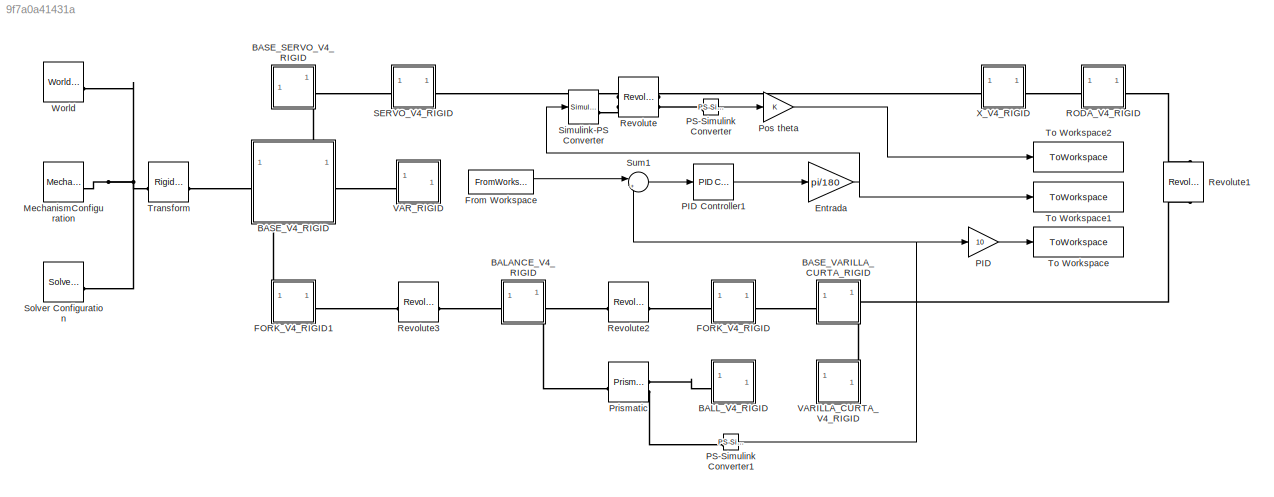
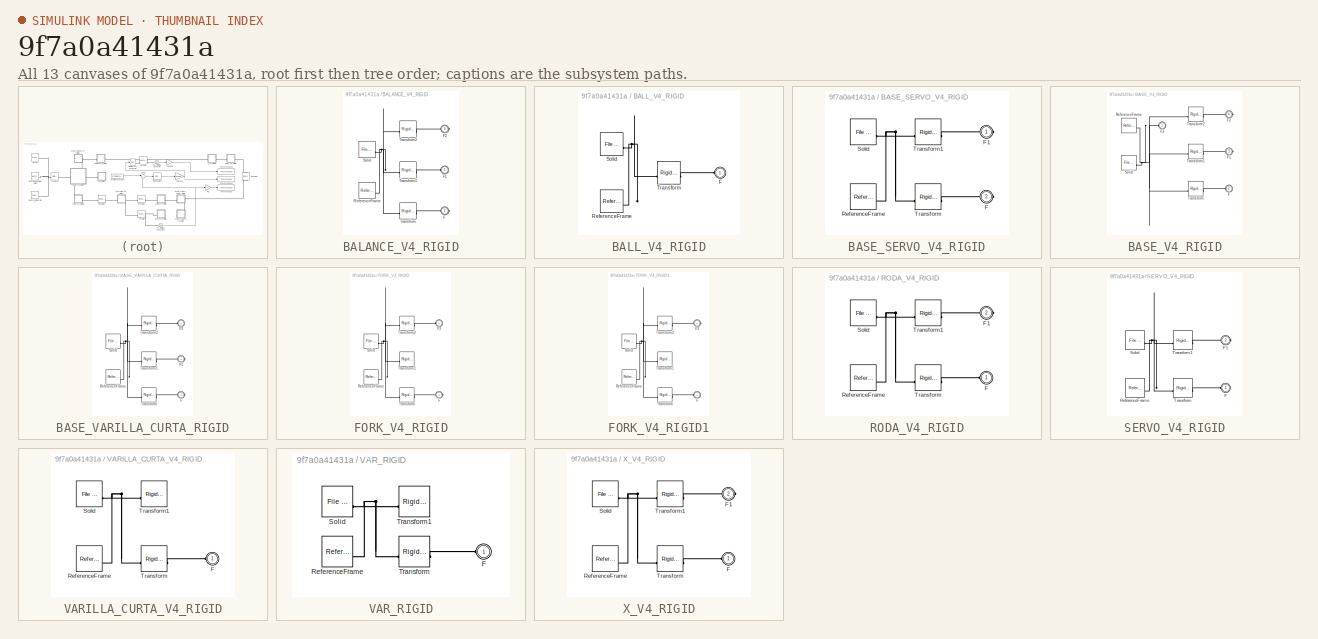
[diagram: thumbnail index - all 13 canvases of the model, root first then tree order]
MODEL slx_9f7a0a41431a
KIND model
CONFIG AbsTol = auto
CONFIG EnableMultiTasking = off
CONFIG FixedStep = auto
CONFIG MaxStep = auto
CONFIG MinStep = auto
CONFIG RelTol = 1e-2
CONFIG SampleTimeConstraint = Unconstrained
CONFIG SolverName = ode15s
CONFIG StartTime = 0.0
CONFIG StopTime = 20
WORKSPACE source: external: MATLAB File  (data not in archive)
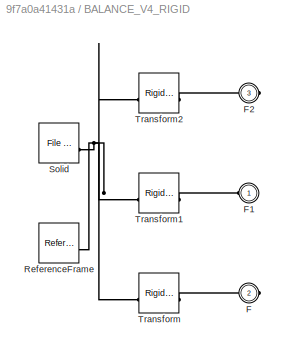
BLOCK [SubSystem] BALANCE_V4_RIGID
  PortSchema = {"entries":[{"content":{"sides":[{"content":{"connectorIds":["LConn1"]},"type":"ConnectorPlacement.EquallySpacedRectSide","uuid":"0e1499bb-e7f1-4744-8e19-5e4cae89a6b9"},{"content":{"connectorIds":["RConn1"],"side":"RIGHT"},"type":"ConnectorPlacement.EquallySpacedRectSide","uuid":"52f7592b-0b54-4fed-a927-b52b2f8c951d"},{"content":{"side":"TOP"},"type":"ConnectorPlacement.EquallySpacedRectSide","uui...<+379ch>
BLOCK [PMIOPort] BALANCE_V4_RIGID/F
  Port = 2
  Side = Right
BLOCK [PMIOPort] BALANCE_V4_RIGID/F1
  Side = Left
BLOCK [PMIOPort] BALANCE_V4_RIGID/F2
  Port = 3
  Side = Right
BLOCK [Reference] BALANCE_V4_RIGID/ReferenceFrame  REF=sm_lib/Frames and
Transforms/Reference
Frame
  SourceBlock = sm_lib/Frames and\nTransforms/Reference\nFrame
  SourceType = Reference\nFrame
BLOCK [Reference] BALANCE_V4_RIGID/Solid  REF=sm_lib/Body Elements/File Solid
  SourceBlock = sm_lib/Body Elements/File Solid
  SourceType = File Solid
BLOCK [Reference] BALANCE_V4_RIGID/Transform  REF=sm_lib/Frames and
Transforms/Rigid
Transform
  SourceBlock = sm_lib/Frames and\nTransforms/Rigid\nTransform
  SourceType = Rigid\nTransform
BLOCK [Reference] BALANCE_V4_RIGID/Transform1  REF=sm_lib/Frames and
Transforms/Rigid
Transform
  SourceBlock = sm_lib/Frames and\nTransforms/Rigid\nTransform
  SourceType = Rigid\nTransform
BLOCK [Reference] BALANCE_V4_RIGID/Transform2  REF=sm_lib/Frames and
Transforms/Rigid
Transform
  SourceBlock = sm_lib/Frames and\nTransforms/Rigid\nTransform
  SourceType = Rigid\nTransform
BLOCK [SubSystem] BALL_V4_RIGID
  NameLocation = top
BLOCK [PMIOPort] BALL_V4_RIGID/F
  Side = Left
BLOCK [Reference] BALL_V4_RIGID/ReferenceFrame  REF=sm_lib/Frames and
Transforms/Reference
Frame
  SourceBlock = sm_lib/Frames and\nTransforms/Reference\nFrame
  SourceType = Reference\nFrame
BLOCK [Reference] BALL_V4_RIGID/Solid  REF=sm_lib/Body Elements/File Solid
  SourceBlock = sm_lib/Body Elements/File Solid
  SourceType = File Solid
BLOCK [Reference] BALL_V4_RIGID/Transform  REF=sm_lib/Frames and
Transforms/Rigid
Transform
  SourceBlock = sm_lib/Frames and\nTransforms/Rigid\nTransform
  SourceType = Rigid\nTransform
BLOCK [SubSystem] BASE_SERVO_V4_RIGID
  NameLocation = top
  PortSchema = {"entries":[{"content":{"sides":[{"content":{},"type":"ConnectorPlacement.EquallySpacedRectSide","uuid":"ff068e32-094c-455c-a0b0-80a3afee4610"},{"content":{"connectorIds":["RConn1"],"side":"RIGHT"},"type":"ConnectorPlacement.EquallySpacedRectSide","uuid":"6b238b63-398a-4d63-a4b0-2fe1ec0d14c1"},{"content":{"side":"TOP"},"type":"ConnectorPlacement.EquallySpacedRectSide","uuid":"70bf06c6-ef26-4b0b-92...<+354ch>
BLOCK [PMIOPort] BASE_SERVO_V4_RIGID/F
  Port = 2
  Side = Right
BLOCK [PMIOPort] BASE_SERVO_V4_RIGID/F1
  Side = Right
BLOCK [Reference] BASE_SERVO_V4_RIGID/ReferenceFrame  REF=sm_lib/Frames and
Transforms/Reference
Frame
  SourceBlock = sm_lib/Frames and\nTransforms/Reference\nFrame
  SourceType = Reference\nFrame
BLOCK [Reference] BASE_SERVO_V4_RIGID/Solid  REF=sm_lib/Body Elements/File Solid
  SourceBlock = sm_lib/Body Elements/File Solid
  SourceType = File Solid
BLOCK [Reference] BASE_SERVO_V4_RIGID/Transform  REF=sm_lib/Frames and
Transforms/Rigid
Transform
  SourceBlock = sm_lib/Frames and\nTransforms/Rigid\nTransform
  SourceType = Rigid\nTransform
BLOCK [Reference] BASE_SERVO_V4_RIGID/Transform1  REF=sm_lib/Frames and
Transforms/Rigid
Transform
  SourceBlock = sm_lib/Frames and\nTransforms/Rigid\nTransform
  SourceType = Rigid\nTransform
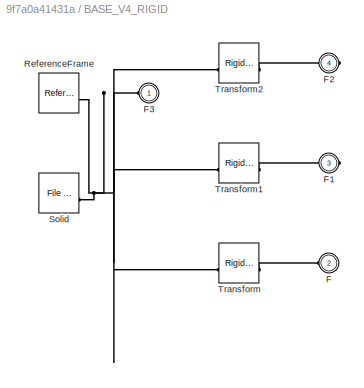
BLOCK [SubSystem] BASE_V4_RIGID
  PortSchema = {"entries":[{"content":{"sides":[{"content":{"connectorIds":["LConn1"]},"type":"ConnectorPlacement.EquallySpacedRectSide","uuid":"37133109-e8ec-41aa-b373-ba126b830fde"},{"content":{"connectorIds":["RConn1"],"side":"RIGHT"},"type":"ConnectorPlacement.EquallySpacedRectSide","uuid":"dc72eae3-6f65-4d7f-a0ec-de73502dd286"},{"content":{"connectorIds":["LConn2"],"side":"TOP"},"type":"ConnectorPlacement.E...<+405ch>
BLOCK [PMIOPort] BASE_V4_RIGID/F
  Port = 2
  Side = Left
BLOCK [PMIOPort] BASE_V4_RIGID/F1
  Port = 3
  Side = Right
BLOCK [PMIOPort] BASE_V4_RIGID/F2
  Port = 4
  Side = Right
BLOCK [PMIOPort] BASE_V4_RIGID/F3
  Side = Left
BLOCK [Reference] BASE_V4_RIGID/ReferenceFrame  REF=sm_lib/Frames and
Transforms/Reference
Frame
  SourceBlock = sm_lib/Frames and\nTransforms/Reference\nFrame
  SourceType = Reference\nFrame
BLOCK [Reference] BASE_V4_RIGID/Solid  REF=sm_lib/Body Elements/File Solid
  SourceBlock = sm_lib/Body Elements/File Solid
  SourceType = File Solid
BLOCK [Reference] BASE_V4_RIGID/Transform  REF=sm_lib/Frames and
Transforms/Rigid
Transform
  SourceBlock = sm_lib/Frames and\nTransforms/Rigid\nTransform
  SourceType = Rigid\nTransform
BLOCK [Reference] BASE_V4_RIGID/Transform1  REF=sm_lib/Frames and
Transforms/Rigid
Transform
  SourceBlock = sm_lib/Frames and\nTransforms/Rigid\nTransform
  SourceType = Rigid\nTransform
BLOCK [Reference] BASE_V4_RIGID/Transform2  REF=sm_lib/Frames and
Transforms/Rigid
Transform
  SourceBlock = sm_lib/Frames and\nTransforms/Rigid\nTransform
  SourceType = Rigid\nTransform
BLOCK [SubSystem] BASE_VARILLA_CURTA_RIGID
  NameLocation = top
  PortSchema = {"entries":[{"content":{"sides":[{"content":{"connectorIds":["LConn1"]},"type":"ConnectorPlacement.EquallySpacedRectSide","uuid":"ea175ced-bf57-4b08-b428-bb467534bc0c"},{"content":{"connectorIds":["RConn1"],"side":"RIGHT"},"type":"ConnectorPlacement.EquallySpacedRectSide","uuid":"64fd755e-15bd-4e92-a960-9ba0b0f524da"},{"content":{"side":"TOP"},"type":"ConnectorPlacement.EquallySpacedRectSide","uui...<+379ch>
BLOCK [PMIOPort] BASE_VARILLA_CURTA_RIGID/F
  Port = 2
  Side = Right
BLOCK [PMIOPort] BASE_VARILLA_CURTA_RIGID/F1
  Port = 3
  Side = Right
BLOCK [PMIOPort] BASE_VARILLA_CURTA_RIGID/F2
  Side = Left
BLOCK [Reference] BASE_VARILLA_CURTA_RIGID/ReferenceFrame  REF=sm_lib/Frames and
Transforms/Reference
Frame
  SourceBlock = sm_lib/Frames and\nTransforms/Reference\nFrame
  SourceType = Reference\nFrame
BLOCK [Reference] BASE_VARILLA_CURTA_RIGID/Solid  REF=sm_lib/Body Elements/File Solid
  SourceBlock = sm_lib/Body Elements/File Solid
  SourceType = File Solid
BLOCK [Reference] BASE_VARILLA_CURTA_RIGID/Transform  REF=sm_lib/Frames and
Transforms/Rigid
Transform
  SourceBlock = sm_lib/Frames and\nTransforms/Rigid\nTransform
  SourceType = Rigid\nTransform
BLOCK [Reference] BASE_VARILLA_CURTA_RIGID/Transform1  REF=sm_lib/Frames and
Transforms/Rigid
Transform
  SourceBlock = sm_lib/Frames and\nTransforms/Rigid\nTransform
  SourceType = Rigid\nTransform
BLOCK [Reference] BASE_VARILLA_CURTA_RIGID/Transform2  REF=sm_lib/Frames and
Transforms/Rigid
Transform
  SourceBlock = sm_lib/Frames and\nTransforms/Rigid\nTransform
  SourceType = Rigid\nTransform
BLOCK [Gain] Entrada
  Gain = pi/180
BLOCK [SubSystem] FORK_V4_RIGID
BLOCK [PMIOPort] FORK_V4_RIGID/F
  Port = 2
  Side = Right
BLOCK [PMIOPort] FORK_V4_RIGID/F2
  Side = Left
BLOCK [Reference] FORK_V4_RIGID/ReferenceFrame  REF=sm_lib/Frames and
Transforms/Reference
Frame
  SourceBlock = sm_lib/Frames and\nTransforms/Reference\nFrame
  SourceType = Reference\nFrame
BLOCK [Reference] FORK_V4_RIGID/Solid  REF=sm_lib/Body Elements/File Solid
  SourceBlock = sm_lib/Body Elements/File Solid
  SourceType = File Solid
BLOCK [Reference] FORK_V4_RIGID/Transform  REF=sm_lib/Frames and
Transforms/Rigid
Transform
  SourceBlock = sm_lib/Frames and\nTransforms/Rigid\nTransform
  SourceType = Rigid\nTransform
BLOCK [Reference] FORK_V4_RIGID/Transform1  REF=sm_lib/Frames and
Transforms/Rigid
Transform
  SourceBlock = sm_lib/Frames and\nTransforms/Rigid\nTransform
  SourceType = Rigid\nTransform
BLOCK [Reference] FORK_V4_RIGID/Transform2  REF=sm_lib/Frames and
Transforms/Rigid
Transform
  SourceBlock = sm_lib/Frames and\nTransforms/Rigid\nTransform
  SourceType = Rigid\nTransform
BLOCK [SubSystem] FORK_V4_RIGID1
  PortSchema = {"entries":[{"content":{"sides":[{"content":{},"type":"ConnectorPlacement.EquallySpacedRectSide","uuid":"32a87da9-8b27-400e-a4fe-7b27a9db9256"},{"content":{"connectorIds":["RConn1"],"side":"RIGHT"},"type":"ConnectorPlacement.EquallySpacedRectSide","uuid":"120c0ca0-b690-497a-aed5-44ae480c1385"},{"content":{"connectorIds":["LConn1"],"side":"TOP"},"type":"ConnectorPlacement.EquallySpacedRectSide","uu...<+228ch>
BLOCK [PMIOPort] FORK_V4_RIGID1/F
  Side = Left
BLOCK [PMIOPort] FORK_V4_RIGID1/F2
  Port = 2
  Side = Right
BLOCK [Reference] FORK_V4_RIGID1/ReferenceFrame  REF=sm_lib/Frames and
Transforms/Reference
Frame
  SourceBlock = sm_lib/Frames and\nTransforms/Reference\nFrame
  SourceType = Reference\nFrame
BLOCK [Reference] FORK_V4_RIGID1/Solid  REF=sm_lib/Body Elements/File Solid
  SourceBlock = sm_lib/Body Elements/File Solid
  SourceType = File Solid
BLOCK [Reference] FORK_V4_RIGID1/Transform  REF=sm_lib/Frames and
Transforms/Rigid
Transform
  SourceBlock = sm_lib/Frames and\nTransforms/Rigid\nTransform
  SourceType = Rigid\nTransform
BLOCK [Reference] FORK_V4_RIGID1/Transform1  REF=sm_lib/Frames and
Transforms/Rigid
Transform
  SourceBlock = sm_lib/Frames and\nTransforms/Rigid\nTransform
  SourceType = Rigid\nTransform
BLOCK [Reference] FORK_V4_RIGID1/Transform2  REF=sm_lib/Frames and
Transforms/Rigid
Transform
  SourceBlock = sm_lib/Frames and\nTransforms/Rigid\nTransform
  SourceType = Rigid\nTransform
BLOCK [FromWorkspace] From Workspace
  VariableName = ref_pos
BLOCK [Reference] MechanismConfiguration  REF=sm_lib/Utilities/Mechanism
Configuration
  SourceBlock = sm_lib/Utilities/Mechanism\nConfiguration
  SourceType = Mechanism\nConfiguration
BLOCK [Gain] PID
  Gain = 10
BLOCK [Reference] PID Controller1  REF=slpidlib/PID Controller
  LibrarySourceBlock = simulink/Continuous/PID Controller
  SourceBlock = slpidlib/PID Controller
  SourceType = PID 1dof
BLOCK [Reference] PS-Simulink Converter  REF=nesl_utility/PS-Simulink
Converter
  SourceBlock = nesl_utility/PS-Simulink\nConverter
  SourceType = PS-Simulink\nConverter
BLOCK [Reference] PS-Simulink Converter1  REF=nesl_utility/PS-Simulink
Converter
  SourceBlock = nesl_utility/PS-Simulink\nConverter
  SourceType = PS-Simulink\nConverter
BLOCK [Gain] Pos theta
BLOCK [Reference] Prismatic  REF=sm_lib/Joints/Prismatic
Joint
  SourceBlock = sm_lib/Joints/Prismatic\nJoint
  SourceType = Prismatic\nJoint
BLOCK [SubSystem] RODA_V4_RIGID
BLOCK [PMIOPort] RODA_V4_RIGID/F
  Side = Left
BLOCK [PMIOPort] RODA_V4_RIGID/F1
  Port = 2
  Side = Right
BLOCK [Reference] RODA_V4_RIGID/ReferenceFrame  REF=sm_lib/Frames and
Transforms/Reference
Frame
  SourceBlock = sm_lib/Frames and\nTransforms/Reference\nFrame
  SourceType = Reference\nFrame
BLOCK [Reference] RODA_V4_RIGID/Solid  REF=sm_lib/Body Elements/File Solid
  SourceBlock = sm_lib/Body Elements/File Solid
  SourceType = File Solid
BLOCK [Reference] RODA_V4_RIGID/Transform  REF=sm_lib/Frames and
Transforms/Rigid
Transform
  SourceBlock = sm_lib/Frames and\nTransforms/Rigid\nTransform
  SourceType = Rigid\nTransform
BLOCK [Reference] RODA_V4_RIGID/Transform1  REF=sm_lib/Frames and
Transforms/Rigid
Transform
  SourceBlock = sm_lib/Frames and\nTransforms/Rigid\nTransform
  SourceType = Rigid\nTransform
BLOCK [Reference] Revolute  REF=sm_lib/Joints/Revolute Joint
  SourceBlock = sm_lib/Joints/Revolute Joint
  SourceType = Revolute Joint
BLOCK [Reference] Revolute1  REF=sm_lib/Joints/Revolute Joint
  NameLocation = right
  SourceBlock = sm_lib/Joints/Revolute Joint
  SourceType = Revolute Joint
BLOCK [Reference] Revolute2  REF=sm_lib/Joints/Revolute Joint
  NameLocation = top
  SourceBlock = sm_lib/Joints/Revolute Joint
  SourceType = Revolute Joint
BLOCK [Reference] Revolute3  REF=sm_lib/Joints/Revolute Joint
  SourceBlock = sm_lib/Joints/Revolute Joint
  SourceType = Revolute Joint
BLOCK [SubSystem] SERVO_V4_RIGID
BLOCK [PMIOPort] SERVO_V4_RIGID/F
  Side = Left
BLOCK [PMIOPort] SERVO_V4_RIGID/F1
  Port = 2
  Side = Right
BLOCK [Reference] SERVO_V4_RIGID/ReferenceFrame  REF=sm_lib/Frames and
Transforms/Reference
Frame
  SourceBlock = sm_lib/Frames and\nTransforms/Reference\nFrame
  SourceType = Reference\nFrame
BLOCK [Reference] SERVO_V4_RIGID/Solid  REF=sm_lib/Body Elements/File Solid
  SourceBlock = sm_lib/Body Elements/File Solid
  SourceType = File Solid
BLOCK [Reference] SERVO_V4_RIGID/Transform  REF=sm_lib/Frames and
Transforms/Rigid
Transform
  SourceBlock = sm_lib/Frames and\nTransforms/Rigid\nTransform
  SourceType = Rigid\nTransform
BLOCK [Reference] SERVO_V4_RIGID/Transform1  REF=sm_lib/Frames and
Transforms/Rigid
Transform
  SourceBlock = sm_lib/Frames and\nTransforms/Rigid\nTransform
  SourceType = Rigid\nTransform
BLOCK [Reference] Simulink-PS Converter  REF=nesl_utility/Simulink-PS
Converter
  SourceBlock = nesl_utility/Simulink-PS\nConverter
  SourceType = Simulink-PS\nConverter
BLOCK [Reference] Solver Configuration  REF=nesl_utility/Solver
Configuration
  SourceBlock = nesl_utility/Solver\nConfiguration
  SourceType = Solver\nConfiguration
BLOCK [Sum] Sum1
  Inputs = |+-
BLOCK [ToWorkspace] To Workspace
  FixptAsFi = on
  MaxDataPoints = inf
  SampleTime = -1
  SaveFormat = Structure With Time
  VariableName = PosicionPelota
BLOCK [ToWorkspace] To Workspace1
  FixptAsFi = on
  MaxDataPoints = inf
  SampleTime = -1
  SaveFormat = Structure With Time
  VariableName = Entrada
BLOCK [ToWorkspace] To Workspace2
  FixptAsFi = on
  MaxDataPoints = inf
  SampleTime = -1
  SaveFormat = Structure With Time
  VariableName = angulo_servo
BLOCK [Reference] Transform  REF=sm_lib/Frames and
Transforms/Rigid
Transform
  SourceBlock = sm_lib/Frames and\nTransforms/Rigid\nTransform
  SourceType = Rigid\nTransform
BLOCK [SubSystem] VARILLA_CURTA_V4_RIGID
  PortSchema = {"entries":[{"content":{"sides":[{"content":{},"type":"ConnectorPlacement.EquallySpacedRectSide","uuid":"418f9a1d-013d-4a83-815c-35df5b4f608b"},{"content":{"side":"RIGHT"},"type":"ConnectorPlacement.EquallySpacedRectSide","uuid":"8b052d73-9457-440f-be3f-ef9a254b0474"},{"content":{"connectorIds":["LConn1"],"side":"TOP"},"type":"ConnectorPlacement.EquallySpacedRectSide","uuid":"e815de60-f745-4962-b6...<+202ch>
BLOCK [PMIOPort] VARILLA_CURTA_V4_RIGID/F
  Side = Left
BLOCK [Reference] VARILLA_CURTA_V4_RIGID/ReferenceFrame  REF=sm_lib/Frames and
Transforms/Reference
Frame
  SourceBlock = sm_lib/Frames and\nTransforms/Reference\nFrame
  SourceType = Reference\nFrame
BLOCK [Reference] VARILLA_CURTA_V4_RIGID/Solid  REF=sm_lib/Body Elements/File Solid
  SourceBlock = sm_lib/Body Elements/File Solid
  SourceType = File Solid
BLOCK [Reference] VARILLA_CURTA_V4_RIGID/Transform  REF=sm_lib/Frames and
Transforms/Rigid
Transform
  SourceBlock = sm_lib/Frames and\nTransforms/Rigid\nTransform
  SourceType = Rigid\nTransform
BLOCK [Reference] VARILLA_CURTA_V4_RIGID/Transform1  REF=sm_lib/Frames and
Transforms/Rigid
Transform
  SourceBlock = sm_lib/Frames and\nTransforms/Rigid\nTransform
  SourceType = Rigid\nTransform
BLOCK [SubSystem] VAR_RIGID
  NameLocation = top
BLOCK [PMIOPort] VAR_RIGID/F
  Side = Left
BLOCK [Reference] VAR_RIGID/ReferenceFrame  REF=sm_lib/Frames and
Transforms/Reference
Frame
  SourceBlock = sm_lib/Frames and\nTransforms/Reference\nFrame
  SourceType = Reference\nFrame
BLOCK [Reference] VAR_RIGID/Solid  REF=sm_lib/Body Elements/File Solid
  SourceBlock = sm_lib/Body Elements/File Solid
  SourceType = File Solid
BLOCK [Reference] VAR_RIGID/Transform  REF=sm_lib/Frames and
Transforms/Rigid
Transform
  SourceBlock = sm_lib/Frames and\nTransforms/Rigid\nTransform
  SourceType = Rigid\nTransform
BLOCK [Reference] VAR_RIGID/Transform1  REF=sm_lib/Frames and
Transforms/Rigid
Transform
  SourceBlock = sm_lib/Frames and\nTransforms/Rigid\nTransform
  SourceType = Rigid\nTransform
BLOCK [Reference] World  REF=sm_lib/Frames and
Transforms/World Frame
  SourceBlock = sm_lib/Frames and\nTransforms/World Frame
  SourceType = World Frame
BLOCK [SubSystem] X_V4_RIGID
BLOCK [PMIOPort] X_V4_RIGID/F
  Side = Left
BLOCK [PMIOPort] X_V4_RIGID/F1
  Port = 2
  Side = Right
BLOCK [Reference] X_V4_RIGID/ReferenceFrame  REF=sm_lib/Frames and
Transforms/Reference
Frame
  SourceBlock = sm_lib/Frames and\nTransforms/Reference\nFrame
  SourceType = Reference\nFrame
BLOCK [Reference] X_V4_RIGID/Solid  REF=sm_lib/Body Elements/File Solid
  SourceBlock = sm_lib/Body Elements/File Solid
  SourceType = File Solid
BLOCK [Reference] X_V4_RIGID/Transform  REF=sm_lib/Frames and
Transforms/Rigid
Transform
  SourceBlock = sm_lib/Frames and\nTransforms/Rigid\nTransform
  SourceType = Rigid\nTransform
BLOCK [Reference] X_V4_RIGID/Transform1  REF=sm_lib/Frames and
Transforms/Rigid
Transform
  SourceBlock = sm_lib/Frames and\nTransforms/Rigid\nTransform
  SourceType = Rigid\nTransform
NET Entrada:1 -> Simulink-PS Converter:1, To Workspace1:1
LINE From Workspace:1 -> Sum1:1
LINE PID Controller1:1 -> Entrada:1
LINE PID:1 -> To Workspace:1
NET PS-Simulink Converter1:1 -> PID:1, Sum1:2
LINE PS-Simulink Converter:1 -> Pos theta:1
LINE Pos theta:1 -> To Workspace2:1
LINE Sum1:1 -> PID Controller1:1
PLINE BALANCE_V4_RIGID/F1:RConn1 -- BALANCE_V4_RIGID/Transform1:RConn1
PLINE BALANCE_V4_RIGID/F2:RConn1 -- BALANCE_V4_RIGID/Transform2:RConn1
PLINE BALANCE_V4_RIGID/F:RConn1 -- BALANCE_V4_RIGID/Transform:RConn1
PNET net1: BALANCE_V4_RIGID/ReferenceFrame:RConn1 -- BALANCE_V4_RIGID/Solid:RConn1 -- BALANCE_V4_RIGID/Transform1:LConn1 -- BALANCE_V4_RIGID/Transform2:LConn1 -- BALANCE_V4_RIGID/Transform:LConn1
PLINE BALANCE_V4_RIGID:LConn1 -- Revolute3:RConn1
PLINE BALANCE_V4_RIGID:RConn1 -- Revolute2:RConn1
PLINE BALANCE_V4_RIGID:RConn2 -- Prismatic:LConn1
PLINE BALL_V4_RIGID/F:RConn1 -- BALL_V4_RIGID/Transform:RConn1
PNET net2: BALL_V4_RIGID/ReferenceFrame:RConn1 -- BALL_V4_RIGID/Solid:RConn1 -- BALL_V4_RIGID/Transform:LConn1
PLINE BALL_V4_RIGID:LConn1 -- Prismatic:RConn1
PLINE BASE_SERVO_V4_RIGID/F1:RConn1 -- BASE_SERVO_V4_RIGID/Transform1:RConn1
PLINE BASE_SERVO_V4_RIGID/F:RConn1 -- BASE_SERVO_V4_RIGID/Transform:RConn1
PNET net3: BASE_SERVO_V4_RIGID/ReferenceFrame:RConn1 -- BASE_SERVO_V4_RIGID/Solid:RConn1 -- BASE_SERVO_V4_RIGID/Transform1:LConn1 -- BASE_SERVO_V4_RIGID/Transform:LConn1
PLINE BASE_SERVO_V4_RIGID:RConn1 -- SERVO_V4_RIGID:LConn1
PLINE BASE_SERVO_V4_RIGID:RConn2 -- BASE_V4_RIGID:LConn2
PLINE BASE_V4_RIGID/F1:RConn1 -- BASE_V4_RIGID/Transform1:RConn1
PLINE BASE_V4_RIGID/F2:RConn1 -- BASE_V4_RIGID/Transform2:RConn1
PNET net4: BASE_V4_RIGID/F3:RConn1 -- BASE_V4_RIGID/ReferenceFrame:RConn1 -- BASE_V4_RIGID/Solid:RConn1 -- BASE_V4_RIGID/Transform1:LConn1 -- BASE_V4_RIGID/Transform2:LConn1 -- BASE_V4_RIGID/Transform:LConn1
PLINE BASE_V4_RIGID/F:RConn1 -- BASE_V4_RIGID/Transform:RConn1
PLINE BASE_V4_RIGID:LConn1 -- Transform:RConn1
PLINE BASE_V4_RIGID:RConn1 -- VAR_RIGID:LConn1
PLINE BASE_V4_RIGID:RConn2 -- FORK_V4_RIGID1:LConn1
PLINE BASE_VARILLA_CURTA_RIGID/F1:RConn1 -- BASE_VARILLA_CURTA_RIGID/Transform1:RConn1
PLINE BASE_VARILLA_CURTA_RIGID/F2:RConn1 -- BASE_VARILLA_CURTA_RIGID/Transform2:RConn1
PLINE BASE_VARILLA_CURTA_RIGID/F:RConn1 -- BASE_VARILLA_CURTA_RIGID/Transform:RConn1
PNET net5: BASE_VARILLA_CURTA_RIGID/ReferenceFrame:RConn1 -- BASE_VARILLA_CURTA_RIGID/Solid:RConn1 -- BASE_VARILLA_CURTA_RIGID/Transform1:LConn1 -- BASE_VARILLA_CURTA_RIGID/Transform2:LConn1 -- BASE_VARILLA_CURTA_RIGID/Transform:LConn1
PLINE BASE_VARILLA_CURTA_RIGID:LConn1 -- FORK_V4_RIGID:RConn1
PLINE BASE_VARILLA_CURTA_RIGID:RConn1 -- Revolute1:RConn1
PLINE BASE_VARILLA_CURTA_RIGID:RConn2 -- VARILLA_CURTA_V4_RIGID:LConn1
PLINE FORK_V4_RIGID/F2:RConn1 -- FORK_V4_RIGID/Transform2:RConn1
PLINE FORK_V4_RIGID/F:RConn1 -- FORK_V4_RIGID/Transform:RConn1
PNET net6: FORK_V4_RIGID/ReferenceFrame:RConn1 -- FORK_V4_RIGID/Solid:RConn1 -- FORK_V4_RIGID/Transform1:LConn1 -- FORK_V4_RIGID/Transform2:LConn1 -- FORK_V4_RIGID/Transform:LConn1
PLINE FORK_V4_RIGID1/F2:RConn1 -- FORK_V4_RIGID1/Transform2:RConn1
PLINE FORK_V4_RIGID1/F:RConn1 -- FORK_V4_RIGID1/Transform:RConn1
PNET net7: FORK_V4_RIGID1/ReferenceFrame:RConn1 -- FORK_V4_RIGID1/Solid:RConn1 -- FORK_V4_RIGID1/Transform1:LConn1 -- FORK_V4_RIGID1/Transform2:LConn1 -- FORK_V4_RIGID1/Transform:LConn1
PLINE FORK_V4_RIGID1:RConn1 -- Revolute3:LConn1
PLINE FORK_V4_RIGID:LConn1 -- Revolute2:LConn1
PNET net8: MechanismConfiguration:RConn1 -- Solver Configuration:RConn1 -- Transform:LConn1 -- World:RConn1
PLINE PS-Simulink Converter1:LConn1 -- Prismatic:RConn2
PLINE PS-Simulink Converter:LConn1 -- Revolute:RConn2
PLINE RODA_V4_RIGID/F1:RConn1 -- RODA_V4_RIGID/Transform1:RConn1
PLINE RODA_V4_RIGID/F:RConn1 -- RODA_V4_RIGID/Transform:RConn1
PNET net9: RODA_V4_RIGID/ReferenceFrame:RConn1 -- RODA_V4_RIGID/Solid:RConn1 -- RODA_V4_RIGID/Transform1:LConn1 -- RODA_V4_RIGID/Transform:LConn1
PLINE RODA_V4_RIGID:LConn1 -- X_V4_RIGID:RConn1
PLINE RODA_V4_RIGID:RConn1 -- Revolute1:LConn1
PLINE Revolute:LConn1 -- SERVO_V4_RIGID:RConn1
PLINE Revolute:LConn2 -- Simulink-PS Converter:RConn1
PLINE Revolute:RConn1 -- X_V4_RIGID:LConn1
PLINE SERVO_V4_RIGID/F1:RConn1 -- SERVO_V4_RIGID/Transform1:RConn1
PLINE SERVO_V4_RIGID/F:RConn1 -- SERVO_V4_RIGID/Transform:RConn1
PNET net10: SERVO_V4_RIGID/ReferenceFrame:RConn1 -- SERVO_V4_RIGID/Solid:RConn1 -- SERVO_V4_RIGID/Transform1:LConn1 -- SERVO_V4_RIGID/Transform:LConn1
PLINE VARILLA_CURTA_V4_RIGID/F:RConn1 -- VARILLA_CURTA_V4_RIGID/Transform:RConn1
PNET net11: VARILLA_CURTA_V4_RIGID/ReferenceFrame:RConn1 -- VARILLA_CURTA_V4_RIGID/Solid:RConn1 -- VARILLA_CURTA_V4_RIGID/Transform1:LConn1 -- VARILLA_CURTA_V4_RIGID/Transform:LConn1
PLINE VAR_RIGID/F:RConn1 -- VAR_RIGID/Transform:RConn1
PNET net12: VAR_RIGID/ReferenceFrame:RConn1 -- VAR_RIGID/Solid:RConn1 -- VAR_RIGID/Transform1:LConn1 -- VAR_RIGID/Transform:LConn1
PLINE X_V4_RIGID/F1:RConn1 -- X_V4_RIGID/Transform1:RConn1
PLINE X_V4_RIGID/F:RConn1 -- X_V4_RIGID/Transform:RConn1
PNET net13: X_V4_RIGID/ReferenceFrame:RConn1 -- X_V4_RIGID/Solid:RConn1 -- X_V4_RIGID/Transform1:LConn1 -- X_V4_RIGID/Transform:LConn1
note: NET lines group one-source signal fan-out (src -> all destinations, sorted); 1:1 wires keep LINE; PNET lines group multi-terminal physical nets as a canonical sorted terminal list (undirected conserving connections); 2-terminal nets keep the pairwise PLINE form
